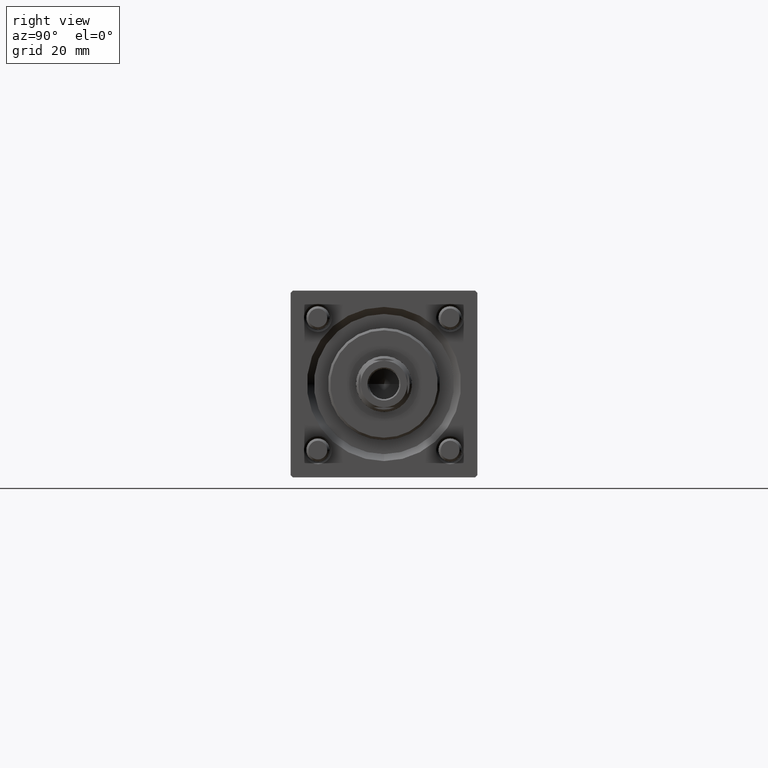
[diagram: clean part render]
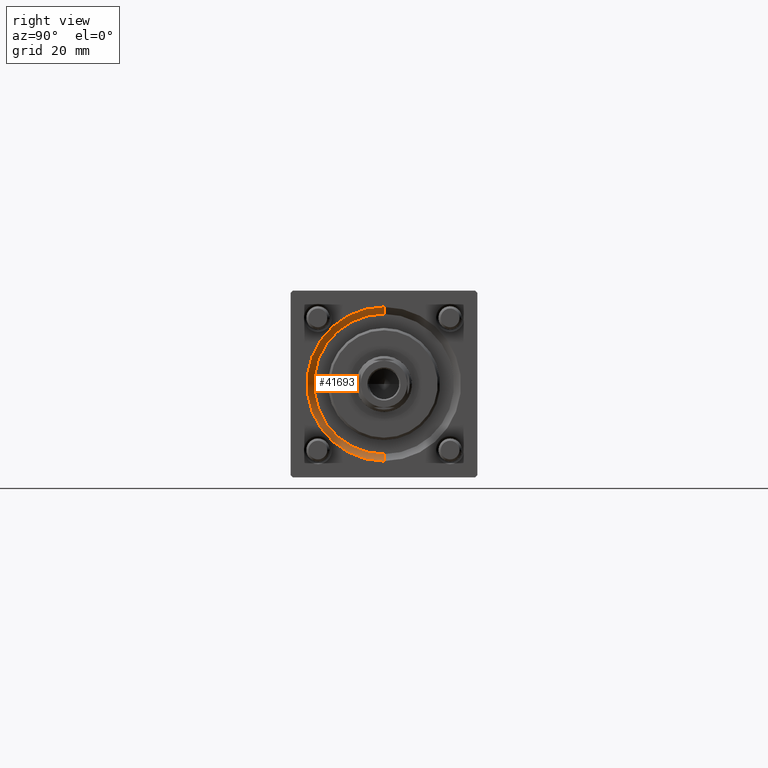
[diagram: same view with one face highlighted and labeled with its STEP entity id]
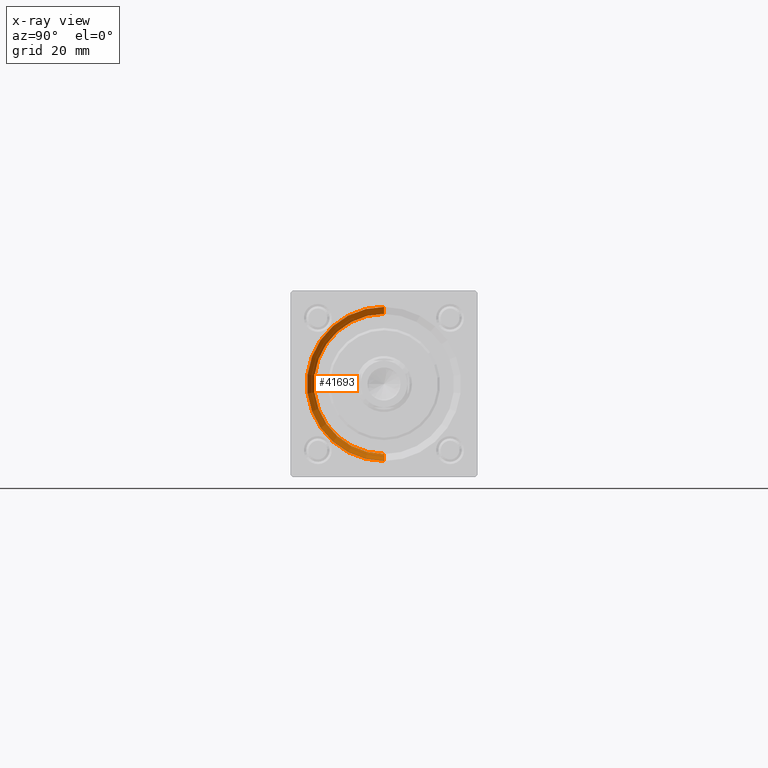
[diagram: x-ray of the same camera — body ghosted, the highlighted face saturated]
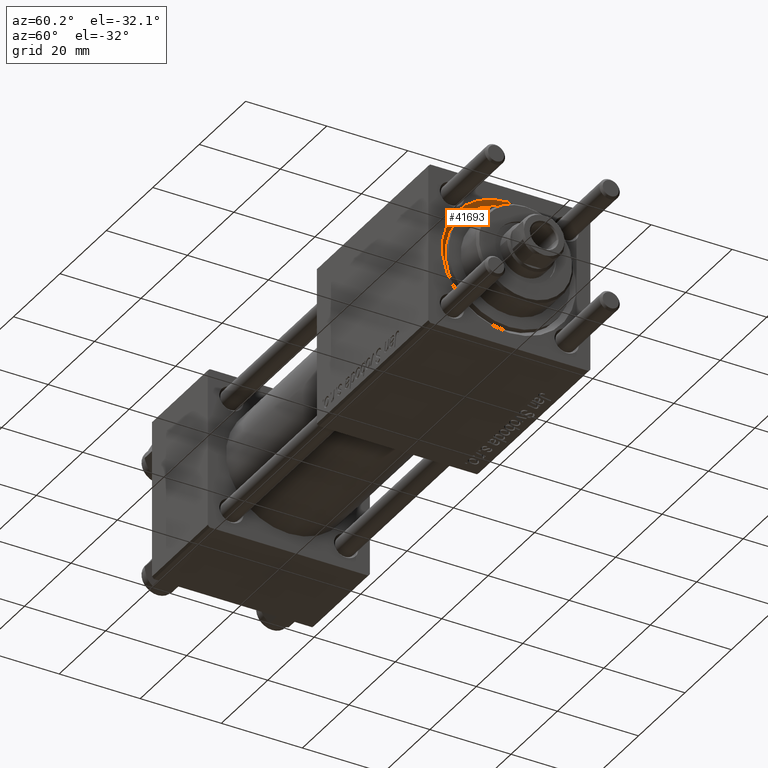
[diagram: same view with one face highlighted and labeled with its STEP entity id]
A machine part, right view. The second image highlights one B-rep face of the part: STEP entity #41693.
The next image is the same camera in x-ray: the body ghosted, the highlighted face saturated — about 0% of this face is hidden behind the body in this view.
A second angle (auxiliary view) of the same face is appended — the face is thin or edge-on in the first view.
In plain terms, the highlighted conical surface has half-angle 45 deg.
Its self-contained STEP definition (entity closure, byte-faithful):
#1083 = CARTESIAN_POINT ( 'NONE',  ( 117.5000000000000000, 0.000000000000000000, -15.00000000000000000 ) ) ;
#2436 = EDGE_CURVE ( 'NONE', #50009, #4393, #18963, .T. ) ;
#4032 = AXIS2_PLACEMENT_3D ( 'NONE', #28777, #37392, #11305 ) ;
#4393 = VERTEX_POINT ( 'NONE', #35968 ) ;
#11229 = EDGE_CURVE ( 'NONE', #51191, #4393, #54098, .T. ) ;
#11305 = DIRECTION ( 'NONE',  ( 0.000000000000000000, 0.000000000000000000, 1.000000000000000000 ) ) ;
#12652 = DIRECTION ( 'NONE',  ( 0.000000000000000000, 0.000000000000000000, -1.000000000000000000 ) ) ;
#12875 = VECTOR ( 'NONE', #54379, 1000.000000000000114 ) ;
#13586 = ORIENTED_EDGE ( 'NONE', *, *, #11229, .T. ) ;
#13649 = EDGE_LOOP ( 'NONE', ( #27795, #13586, #26374, #18080 ) ) ;
#13784 = LINE ( 'NONE', #48795, #50968 ) ;
#15981 = CIRCLE ( 'NONE', #4032, 15.00000000000000000 ) ;
#18080 = ORIENTED_EDGE ( 'NONE', *, *, #38297, .F. ) ;
#18963 = CIRCLE ( 'NONE', #42793, 16.50000000000001421 ) ;
#20123 = VERTEX_POINT ( 'NONE', #1083 ) ;
#25542 = CARTESIAN_POINT ( 'NONE',  ( 117.5000000000000000, 0.000000000000000000, 0.000000000000000000 ) ) ;
#26374 = ORIENTED_EDGE ( 'NONE', *, *, #2436, .F. ) ;
#26846 = DIRECTION ( 'NONE',  ( -1.000000000000000000, -0.000000000000000000, -0.000000000000000000 ) ) ;
#27795 = ORIENTED_EDGE ( 'NONE', *, *, #28213, .F. ) ;
#28213 = EDGE_CURVE ( 'NONE', #51191, #20123, #15981, .T. ) ;
#28777 = CARTESIAN_POINT ( 'NONE',  ( 117.5000000000000000, 0.000000000000000000, 0.000000000000000000 ) ) ;
#29900 = AXIS2_PLACEMENT_3D ( 'NONE', #25542, #51971, #12652 ) ;
#34892 = CARTESIAN_POINT ( 'NONE',  ( 119.0000000000000142, 0.000000000000000000, 0.000000000000000000 ) ) ;
#35968 = CARTESIAN_POINT ( 'NONE',  ( 119.0000000000000142, 2.020667218593134678E-15, 16.50000000000001421 ) ) ;
#36013 = CARTESIAN_POINT ( 'NONE',  ( 117.5000000000000000, 1.836970198721029589E-15, 15.00000000000000000 ) ) ;
#37392 = DIRECTION ( 'NONE',  ( 1.000000000000000000, 0.000000000000000000, 0.000000000000000000 ) ) ;
#38297 = EDGE_CURVE ( 'NONE', #20123, #50009, #13784, .T. ) ;
#39765 = DIRECTION ( 'NONE',  ( 0.000000000000000000, 0.000000000000000000, 1.000000000000000000 ) ) ;
#40606 = CARTESIAN_POINT ( 'NONE',  ( 117.5000000000000000, 1.836970198721029589E-15, 15.00000000000000000 ) ) ;
#40713 = DIRECTION ( 'NONE',  ( 0.7071067811865474617, 0.000000000000000000, -0.7071067811865474617 ) ) ;
#41693 = ADVANCED_FACE ( 'NONE', ( #56260 ), #47356, .F. ) ;
#42793 = AXIS2_PLACEMENT_3D ( 'NONE', #34892, #26846, #39765 ) ;
#46361 = CARTESIAN_POINT ( 'NONE',  ( 119.0000000000000142, 0.000000000000000000, -16.50000000000001421 ) ) ;
#47356 = CONICAL_SURFACE ( 'NONE', #29900, 15.00000000000000000, 0.7853981633974482790 ) ;
#48795 = CARTESIAN_POINT ( 'NONE',  ( 117.5000000000000000, 0.000000000000000000, -15.00000000000000000 ) ) ;
#50009 = VERTEX_POINT ( 'NONE', #46361 ) ;
#50968 = VECTOR ( 'NONE', #40713, 1000.000000000000114 ) ;
#51191 = VERTEX_POINT ( 'NONE', #36013 ) ;
#51971 = DIRECTION ( 'NONE',  ( 1.000000000000000000, 0.000000000000000000, 0.000000000000000000 ) ) ;
#54098 = LINE ( 'NONE', #40606, #12875 ) ;
#54379 = DIRECTION ( 'NONE',  ( 0.7071067811865474617, 8.659560562354932858E-17, 0.7071067811865474617 ) ) ;
#56260 = FACE_OUTER_BOUND ( 'NONE', #13649, .T. ) ;